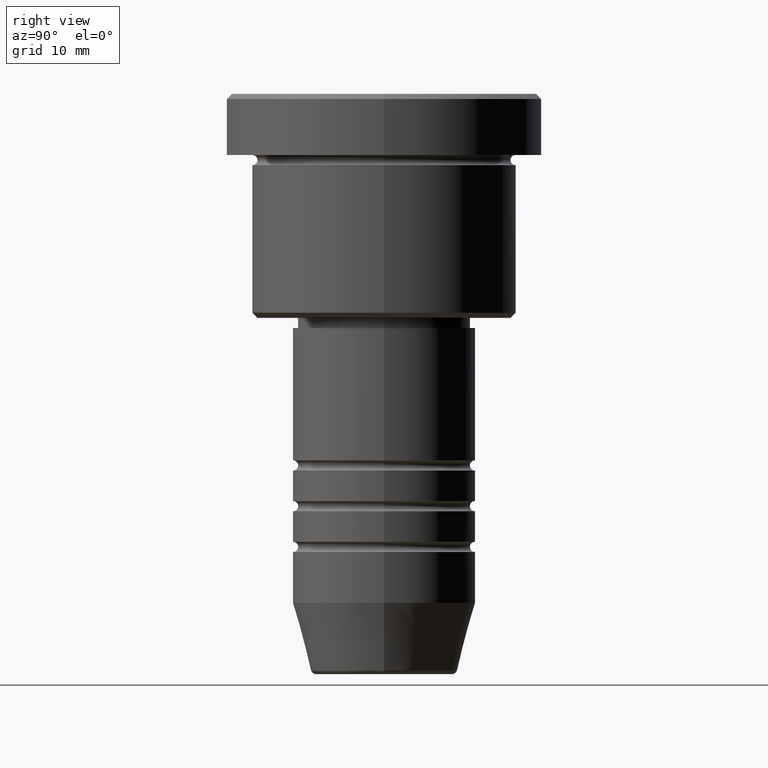
[diagram: clean part render]
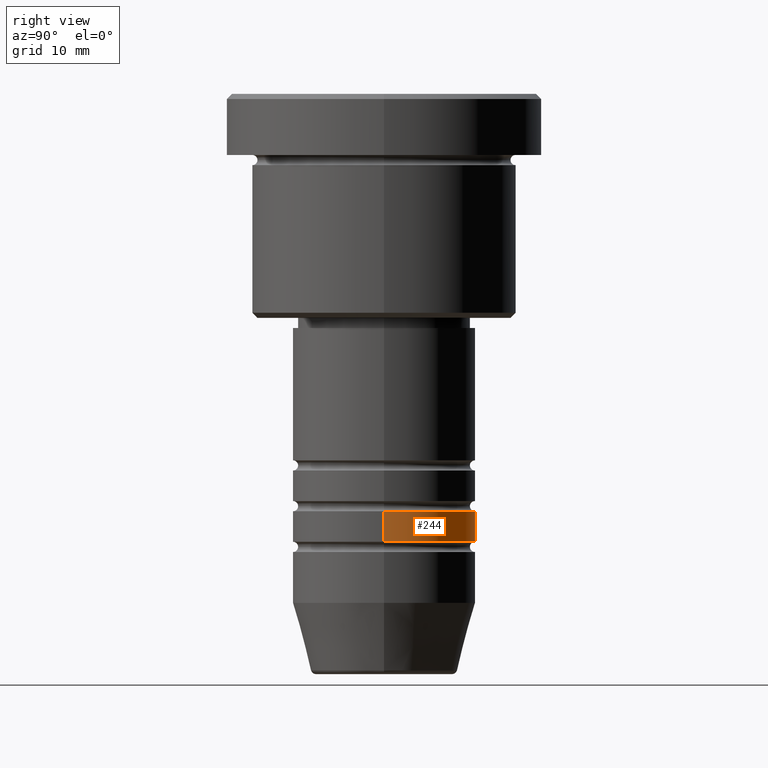
[diagram: same view with one face highlighted and labeled with its STEP entity id]
A machine part, right view. The second image highlights one B-rep face of the part: STEP entity #244.
In plain terms, the highlighted cylindrical surface (partial cylindrical patch) has radius 9 mm, axis along (-0, -0, 1).
Its self-contained STEP definition (entity closure, byte-faithful):
#38 = CARTESIAN_POINT ( 'NONE',  ( 9.000000000000001776, 0.000000000000000000, -43.99999999999988631 ) ) ;
#56 = EDGE_LOOP ( 'NONE', ( #125, #461, #246, #727 ) ) ;
#113 = DIRECTION ( 'NONE',  ( -0.000000000000000000, -0.000000000000000000, 1.000000000000000000 ) ) ;
#125 = ORIENTED_EDGE ( 'NONE', *, *, #347, .T. ) ;
#139 = CARTESIAN_POINT ( 'NONE',  ( -9.000000000000000000, 1.102182119232617714E-15, -40.99999999999989342 ) ) ;
#188 = CARTESIAN_POINT ( 'NONE',  ( 9.000000000000001776, 0.000000000000000000, 0.000000000000000000 ) ) ;
#212 = CIRCLE ( 'NONE', #621, 9.000000000000001776 ) ;
#230 = DIRECTION ( 'NONE',  ( 1.000000000000000000, 0.000000000000000000, 0.000000000000000000 ) ) ;
#244 = ADVANCED_FACE ( 'NONE', ( #1147 ), #933, .T. ) ;
#246 = ORIENTED_EDGE ( 'NONE', *, *, #274, .F. ) ;
#274 = EDGE_CURVE ( 'NONE', #580, #828, #1139, .T. ) ;
#295 = VECTOR ( 'NONE', #113, 1000.000000000000000 ) ;
#347 = EDGE_CURVE ( 'NONE', #685, #436, #212, .T. ) ;
#354 = DIRECTION ( 'NONE',  ( -0.000000000000000000, -0.000000000000000000, 1.000000000000000000 ) ) ;
#436 = VERTEX_POINT ( 'NONE', #535 ) ;
#443 = LINE ( 'NONE', #574, #1181 ) ;
#461 = ORIENTED_EDGE ( 'NONE', *, *, #971, .T. ) ;
#535 = CARTESIAN_POINT ( 'NONE',  ( -9.000000000000001776, 1.102182119232617911E-15, -43.99999999999988631 ) ) ;
#574 = CARTESIAN_POINT ( 'NONE',  ( -9.000000000000001776, 1.102182119232617911E-15, 0.000000000000000000 ) ) ;
#580 = VERTEX_POINT ( 'NONE', #1102 ) ;
#609 = DIRECTION ( 'NONE',  ( -0.000000000000000000, -0.000000000000000000, 1.000000000000000000 ) ) ;
#621 = AXIS2_PLACEMENT_3D ( 'NONE', #889, #609, #230 ) ;
#675 = LINE ( 'NONE', #188, #295 ) ;
#685 = VERTEX_POINT ( 'NONE', #38 ) ;
#686 = DIRECTION ( 'NONE',  ( 1.000000000000000000, 0.000000000000000000, 0.000000000000000000 ) ) ;
#727 = ORIENTED_EDGE ( 'NONE', *, *, #987, .F. ) ;
#764 = DIRECTION ( 'NONE',  ( -0.000000000000000000, -0.000000000000000000, 1.000000000000000000 ) ) ;
#828 = VERTEX_POINT ( 'NONE', #139 ) ;
#889 = CARTESIAN_POINT ( 'NONE',  ( 0.000000000000000000, 0.000000000000000000, -43.99999999999988631 ) ) ;
#933 = CYLINDRICAL_SURFACE ( 'NONE', #1022, 9.000000000000001776 ) ;
#946 = DIRECTION ( 'NONE',  ( -0.000000000000000000, -0.000000000000000000, 1.000000000000000000 ) ) ;
#950 = DIRECTION ( 'NONE',  ( 1.000000000000000000, 0.000000000000000000, 0.000000000000000000 ) ) ;
#958 = AXIS2_PLACEMENT_3D ( 'NONE', #1049, #764, #950 ) ;
#971 = EDGE_CURVE ( 'NONE', #436, #828, #443, .T. ) ;
#987 = EDGE_CURVE ( 'NONE', #685, #580, #675, .T. ) ;
#1022 = AXIS2_PLACEMENT_3D ( 'NONE', #1136, #946, #686 ) ;
#1049 = CARTESIAN_POINT ( 'NONE',  ( 0.000000000000000000, 0.000000000000000000, -40.99999999999989342 ) ) ;
#1102 = CARTESIAN_POINT ( 'NONE',  ( 9.000000000000000000, 0.000000000000000000, -40.99999999999989342 ) ) ;
#1136 = CARTESIAN_POINT ( 'NONE',  ( 0.000000000000000000, 0.000000000000000000, 0.000000000000000000 ) ) ;
#1139 = CIRCLE ( 'NONE', #958, 9.000000000000000000 ) ;
#1147 = FACE_OUTER_BOUND ( 'NONE', #56, .T. ) ;
#1181 = VECTOR ( 'NONE', #354, 1000.000000000000000 ) ;